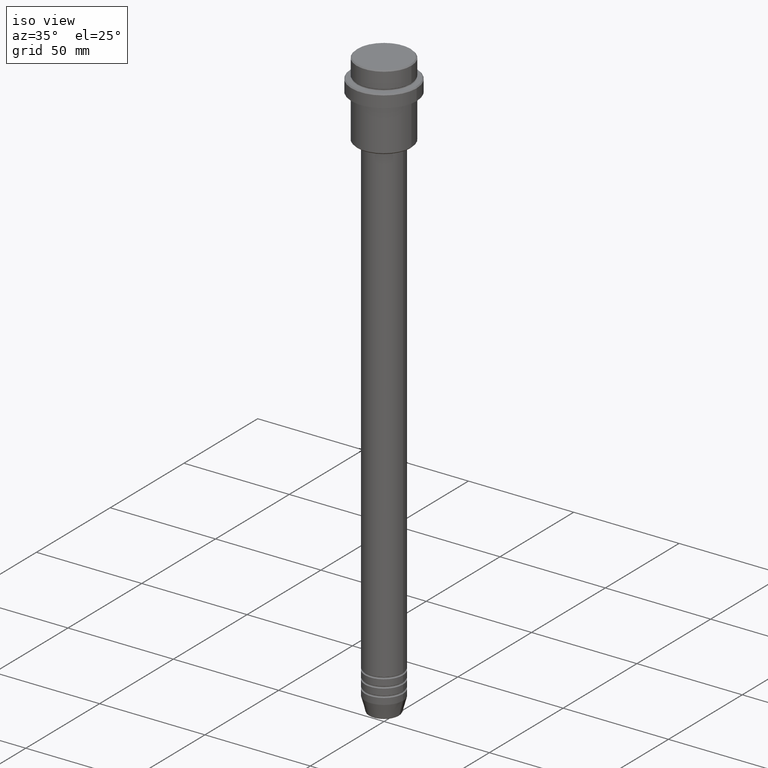
[diagram: clean part render]
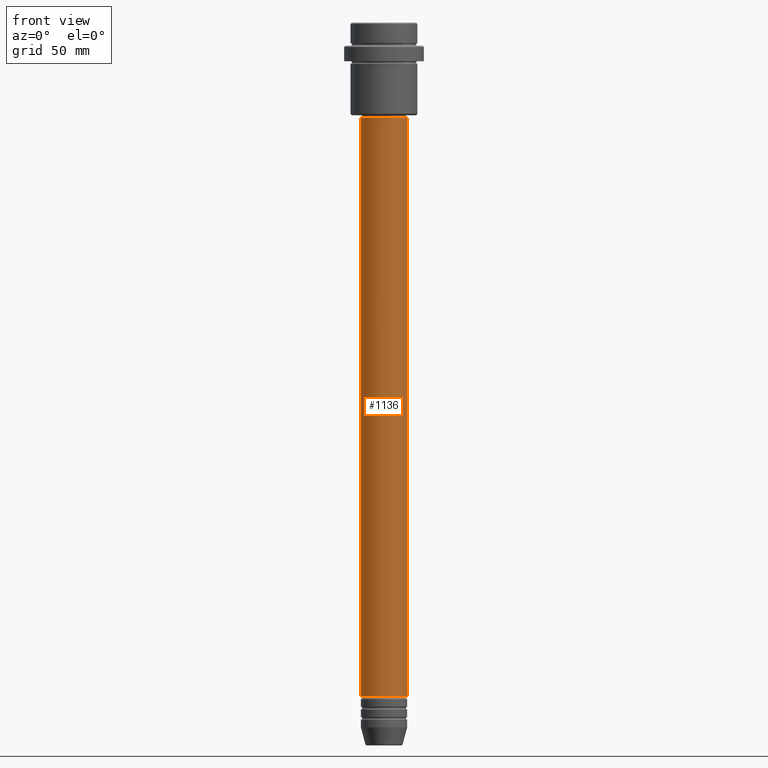
[diagram: tour spotlight — one face highlighted and labeled with its STEP entity id]
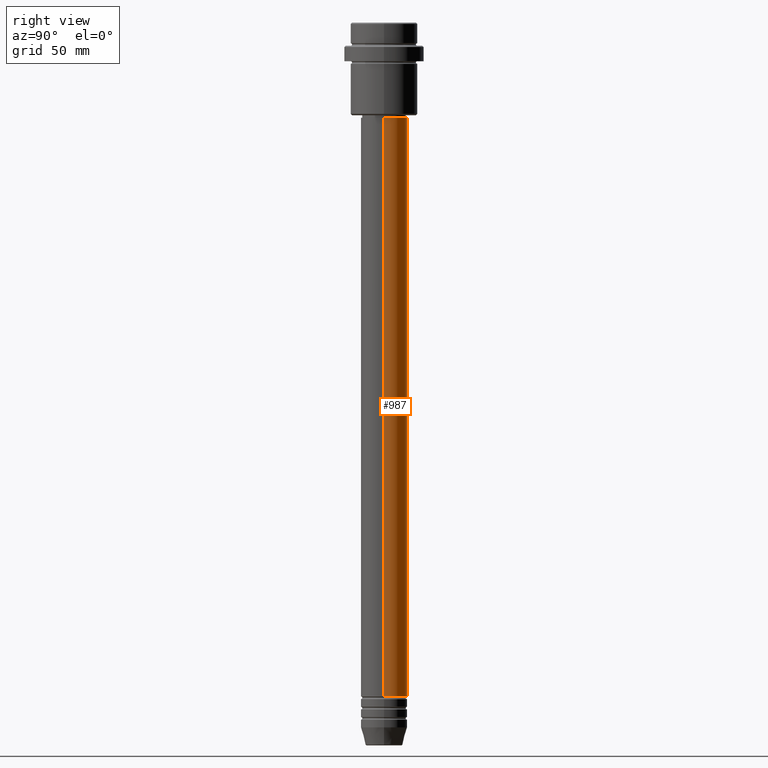
[diagram: tour spotlight — one face highlighted and labeled with its STEP entity id]
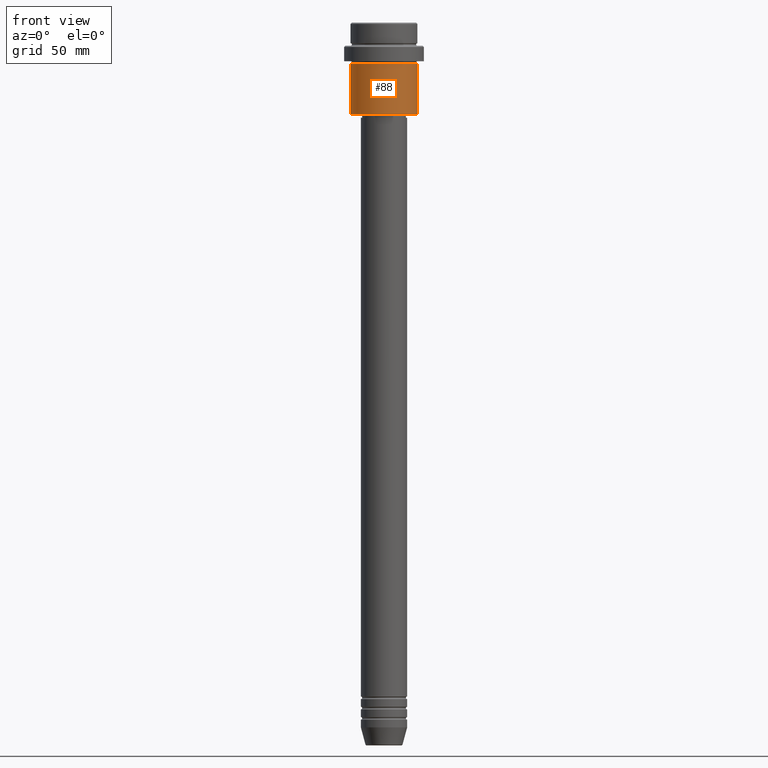
[diagram: tour spotlight — one face highlighted and labeled with its STEP entity id]
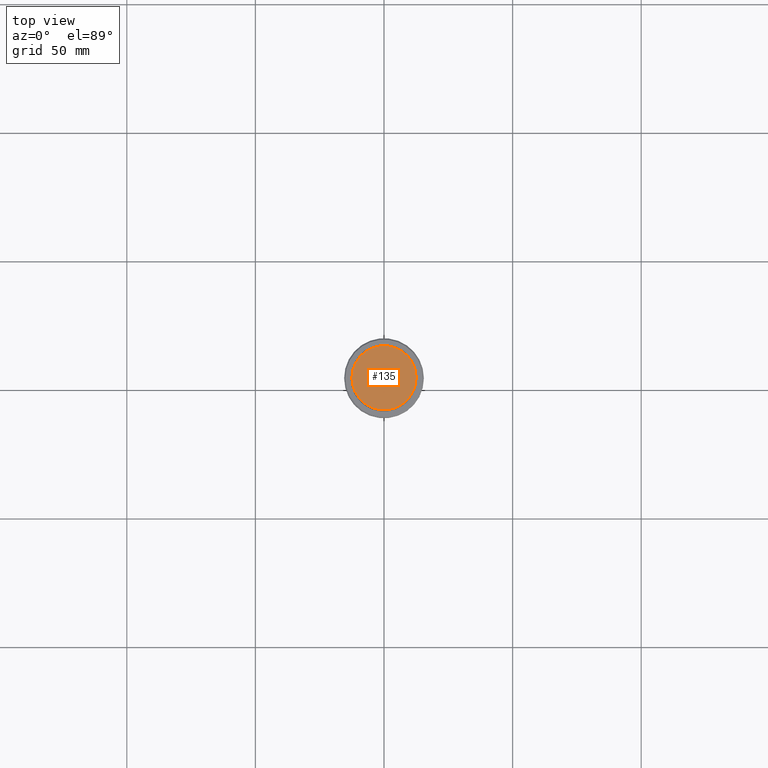
[diagram: tour spotlight — one face highlighted and labeled with its STEP entity id]
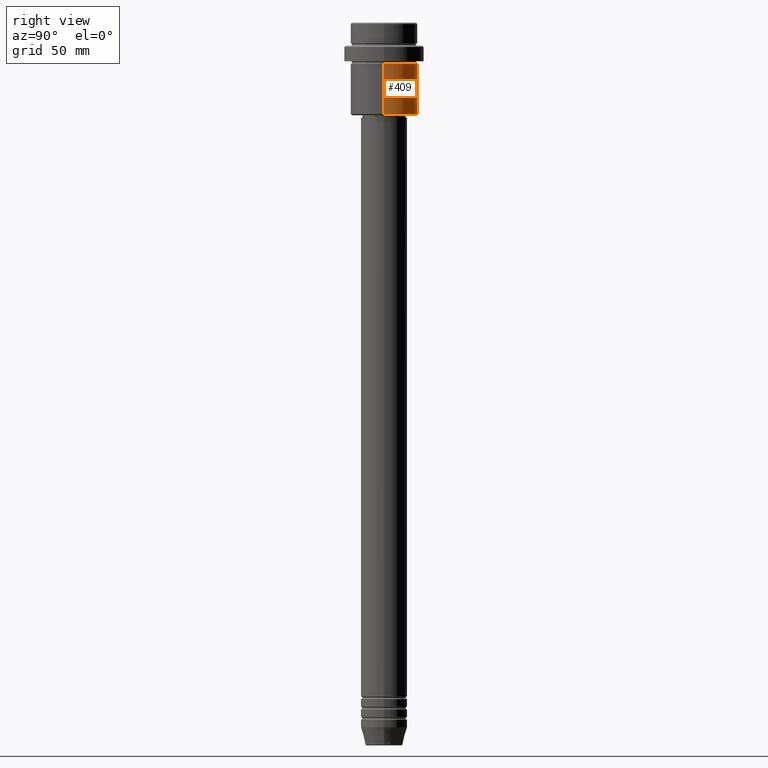
[diagram: tour spotlight — one face highlighted and labeled with its STEP entity id]
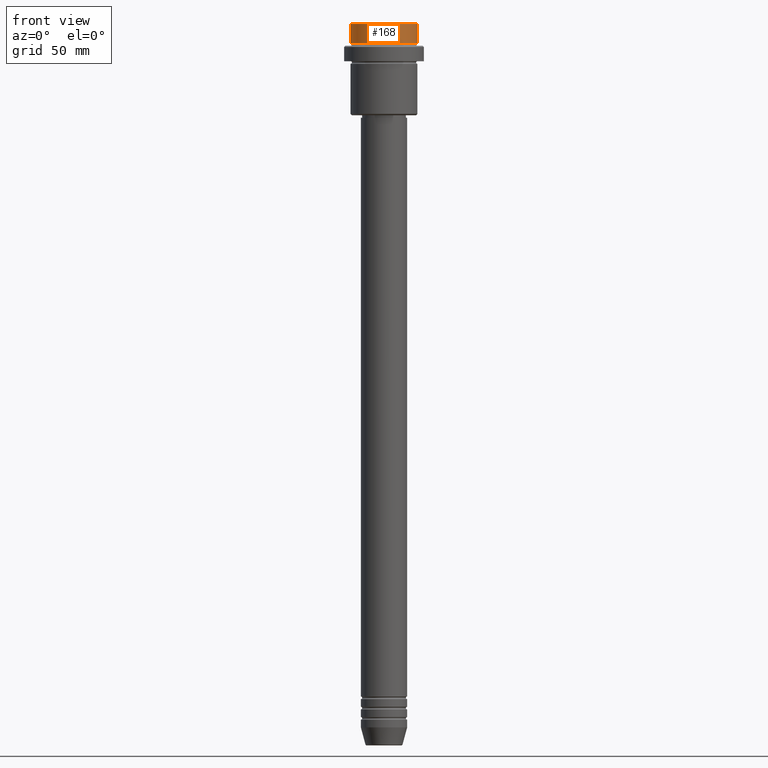
[diagram: tour spotlight — one face highlighted and labeled with its STEP entity id]
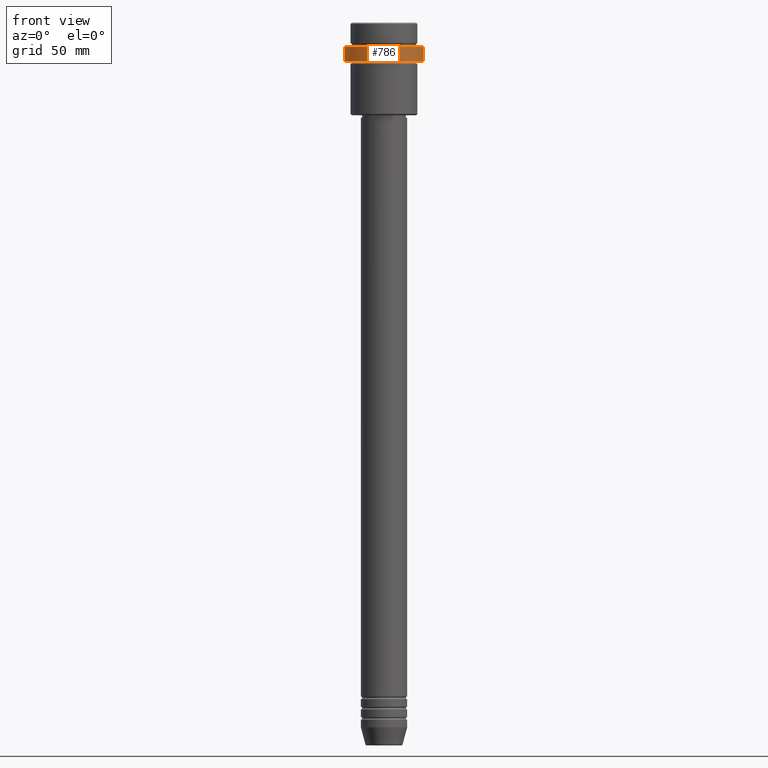
[diagram: tour spotlight — one face highlighted and labeled with its STEP entity id]
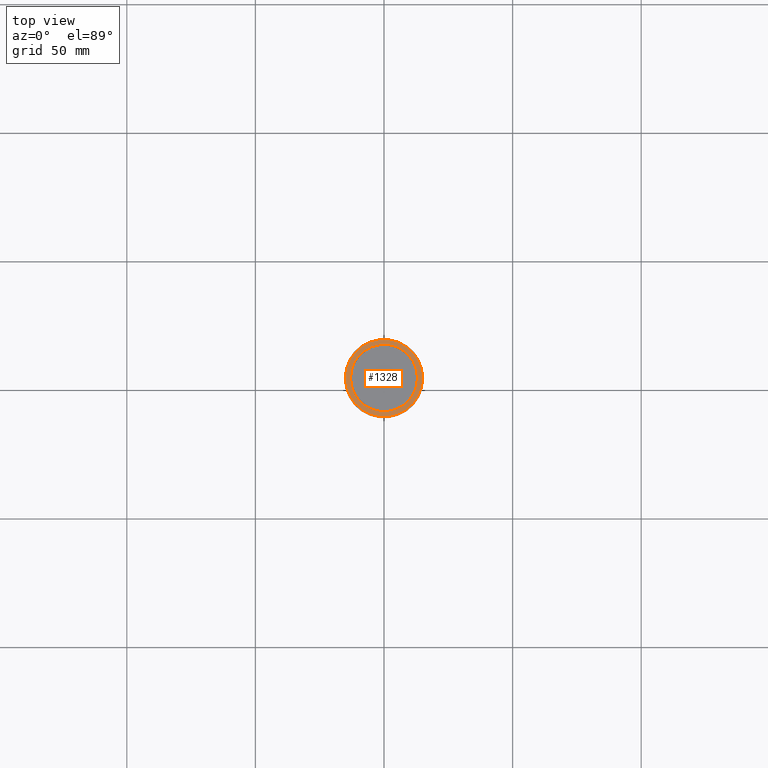
[diagram: tour spotlight — one face highlighted and labeled with its STEP entity id]
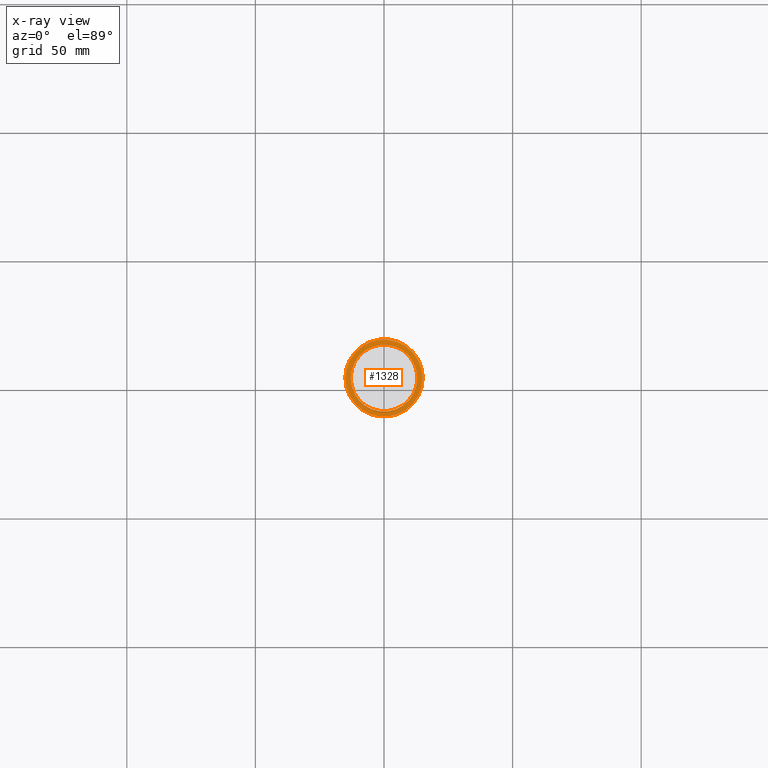
[diagram: x-ray of the same camera — body ghosted, this tour face saturated]
A machine part: a face-by-face anatomy tour. The part has 52 B-rep faces; the first image is the clean iso view, then the 8 largest visible faces are spotlighted one at a time (largest first), each with its STEP entity span.

Face 1 — front view, entity #1136. In plain terms, the highlighted cylindrical surface (edge-blend (fillet) strip) has radius 9 mm, axis along (-0, -0, 1).
Definition (entity closure, byte-faithful):
#21 = CIRCLE ( 'NONE', #1245, 9.000000000000000000 ) ;
#37 = ORIENTED_EDGE ( 'NONE', *, *, #1022, .T. ) ;
#58 = DIRECTION ( 'NONE',  ( 1.000000000000000000, 0.000000000000000000, 0.000000000000000000 ) ) ;
#120 = CARTESIAN_POINT ( 'NONE',  ( 9.000000000000001776, 0.000000000000000000, 0.000000000000000000 ) ) ;
#169 = CARTESIAN_POINT ( 'NONE',  ( 0.000000000000000000, 0.000000000000000000, -261.9999999999998863 ) ) ;
#207 = EDGE_LOOP ( 'NONE', ( #962, #37, #901, #727 ) ) ;
#334 = EDGE_CURVE ( 'NONE', #1095, #1261, #1160, .T. ) ;
#453 = CYLINDRICAL_SURFACE ( 'NONE', #699, 9.000000000000001776 ) ;
#474 = VECTOR ( 'NONE', #739, 1000.000000000000000 ) ;
#511 = CARTESIAN_POINT ( 'NONE',  ( 0.000000000000000000, 0.000000000000000000, -37.00000000000008527 ) ) ;
#525 = LINE ( 'NONE', #120, #474 ) ;
#529 = DIRECTION ( 'NONE',  ( -0.000000000000000000, -0.000000000000000000, 1.000000000000000000 ) ) ;
#538 = CIRCLE ( 'NONE', #1355, 9.000000000000001776 ) ;
#594 = DIRECTION ( 'NONE',  ( -0.000000000000000000, -0.000000000000000000, 1.000000000000000000 ) ) ;
#597 = CARTESIAN_POINT ( 'NONE',  ( 9.000000000000001776, 0.000000000000000000, -37.00000000000008527 ) ) ;
#699 = AXIS2_PLACEMENT_3D ( 'NONE', #861, #1106, #849 ) ;
#727 = ORIENTED_EDGE ( 'NONE', *, *, #817, .F. ) ;
#739 = DIRECTION ( 'NONE',  ( -0.000000000000000000, -0.000000000000000000, 1.000000000000000000 ) ) ;
#817 = EDGE_CURVE ( 'NONE', #1261, #938, #538, .T. ) ;
#849 = DIRECTION ( 'NONE',  ( 1.000000000000000000, 0.000000000000000000, 0.000000000000000000 ) ) ;
#861 = CARTESIAN_POINT ( 'NONE',  ( 0.000000000000000000, 0.000000000000000000, 0.000000000000000000 ) ) ;
#901 = ORIENTED_EDGE ( 'NONE', *, *, #1165, .T. ) ;
#912 = VECTOR ( 'NONE', #594, 1000.000000000000000 ) ;
#938 = VERTEX_POINT ( 'NONE', #597 ) ;
#950 = VERTEX_POINT ( 'NONE', #1028 ) ;
#962 = ORIENTED_EDGE ( 'NONE', *, *, #334, .F. ) ;
#1022 = EDGE_CURVE ( 'NONE', #1095, #950, #21, .T. ) ;
#1028 = CARTESIAN_POINT ( 'NONE',  ( 9.000000000000000000, 0.000000000000000000, -261.9999999999998863 ) ) ;
#1044 = DIRECTION ( 'NONE',  ( -0.000000000000000000, -0.000000000000000000, 1.000000000000000000 ) ) ;
#1080 = DIRECTION ( 'NONE',  ( 1.000000000000000000, 0.000000000000000000, 0.000000000000000000 ) ) ;
#1095 = VERTEX_POINT ( 'NONE', #1340 ) ;
#1106 = DIRECTION ( 'NONE',  ( -0.000000000000000000, -0.000000000000000000, 1.000000000000000000 ) ) ;
#1115 = FACE_OUTER_BOUND ( 'NONE', #207, .T. ) ;
#1136 = ADVANCED_FACE ( 'NONE', ( #1115 ), #453, .T. ) ;
#1160 = LINE ( 'NONE', #1263, #912 ) ;
#1165 = EDGE_CURVE ( 'NONE', #950, #938, #525, .T. ) ;
#1211 = CARTESIAN_POINT ( 'NONE',  ( -9.000000000000001776, 1.102182119232617911E-15, -37.00000000000008527 ) ) ;
#1245 = AXIS2_PLACEMENT_3D ( 'NONE', #169, #1044, #58 ) ;
#1261 = VERTEX_POINT ( 'NONE', #1211 ) ;
#1263 = CARTESIAN_POINT ( 'NONE',  ( -9.000000000000001776, 1.102182119232617911E-15, 0.000000000000000000 ) ) ;
#1340 = CARTESIAN_POINT ( 'NONE',  ( -9.000000000000000000, 1.102182119232617714E-15, -261.9999999999998863 ) ) ;
#1355 = AXIS2_PLACEMENT_3D ( 'NONE', #511, #529, #1080 ) ;

Face 2 — right view, entity #987. In plain terms, the highlighted cylindrical surface (edge-blend (fillet) strip) has radius 9 mm, axis along (-0, -0, 1).
Definition (entity closure, byte-faithful):
#13 = DIRECTION ( 'NONE',  ( -0.000000000000000000, -0.000000000000000000, 1.000000000000000000 ) ) ;
#120 = CARTESIAN_POINT ( 'NONE',  ( 9.000000000000001776, 0.000000000000000000, 0.000000000000000000 ) ) ;
#129 = CIRCLE ( 'NONE', #915, 9.000000000000001776 ) ;
#294 = ORIENTED_EDGE ( 'NONE', *, *, #1165, .F. ) ;
#297 = FACE_OUTER_BOUND ( 'NONE', #1159, .T. ) ;
#334 = EDGE_CURVE ( 'NONE', #1095, #1261, #1160, .T. ) ;
#335 = CARTESIAN_POINT ( 'NONE',  ( 0.000000000000000000, 0.000000000000000000, -37.00000000000008527 ) ) ;
#342 = DIRECTION ( 'NONE',  ( 1.000000000000000000, 0.000000000000000000, 0.000000000000000000 ) ) ;
#445 = EDGE_CURVE ( 'NONE', #950, #1095, #561, .T. ) ;
#474 = VECTOR ( 'NONE', #739, 1000.000000000000000 ) ;
#486 = DIRECTION ( 'NONE',  ( -0.000000000000000000, -0.000000000000000000, 1.000000000000000000 ) ) ;
#525 = LINE ( 'NONE', #120, #474 ) ;
#561 = CIRCLE ( 'NONE', #941, 9.000000000000000000 ) ;
#594 = DIRECTION ( 'NONE',  ( -0.000000000000000000, -0.000000000000000000, 1.000000000000000000 ) ) ;
#597 = CARTESIAN_POINT ( 'NONE',  ( 9.000000000000001776, 0.000000000000000000, -37.00000000000008527 ) ) ;
#603 = CYLINDRICAL_SURFACE ( 'NONE', #1243, 9.000000000000001776 ) ;
#650 = DIRECTION ( 'NONE',  ( 1.000000000000000000, 0.000000000000000000, 0.000000000000000000 ) ) ;
#739 = DIRECTION ( 'NONE',  ( -0.000000000000000000, -0.000000000000000000, 1.000000000000000000 ) ) ;
#748 = CARTESIAN_POINT ( 'NONE',  ( 0.000000000000000000, 0.000000000000000000, -261.9999999999998863 ) ) ;
#759 = DIRECTION ( 'NONE',  ( -0.000000000000000000, -0.000000000000000000, 1.000000000000000000 ) ) ;
#798 = EDGE_CURVE ( 'NONE', #938, #1261, #129, .T. ) ;
#912 = VECTOR ( 'NONE', #594, 1000.000000000000000 ) ;
#915 = AXIS2_PLACEMENT_3D ( 'NONE', #335, #759, #650 ) ;
#938 = VERTEX_POINT ( 'NONE', #597 ) ;
#941 = AXIS2_PLACEMENT_3D ( 'NONE', #748, #13, #342 ) ;
#950 = VERTEX_POINT ( 'NONE', #1028 ) ;
#980 = ORIENTED_EDGE ( 'NONE', *, *, #334, .T. ) ;
#987 = ADVANCED_FACE ( 'NONE', ( #297 ), #603, .T. ) ;
#1028 = CARTESIAN_POINT ( 'NONE',  ( 9.000000000000000000, 0.000000000000000000, -261.9999999999998863 ) ) ;
#1049 = ORIENTED_EDGE ( 'NONE', *, *, #798, .F. ) ;
#1095 = VERTEX_POINT ( 'NONE', #1340 ) ;
#1159 = EDGE_LOOP ( 'NONE', ( #1354, #980, #1049, #294 ) ) ;
#1160 = LINE ( 'NONE', #1263, #912 ) ;
#1162 = CARTESIAN_POINT ( 'NONE',  ( 0.000000000000000000, 0.000000000000000000, 0.000000000000000000 ) ) ;
#1165 = EDGE_CURVE ( 'NONE', #950, #938, #525, .T. ) ;
#1211 = CARTESIAN_POINT ( 'NONE',  ( -9.000000000000001776, 1.102182119232617911E-15, -37.00000000000008527 ) ) ;
#1243 = AXIS2_PLACEMENT_3D ( 'NONE', #1162, #486, #1364 ) ;
#1261 = VERTEX_POINT ( 'NONE', #1211 ) ;
#1263 = CARTESIAN_POINT ( 'NONE',  ( -9.000000000000001776, 1.102182119232617911E-15, 0.000000000000000000 ) ) ;
#1340 = CARTESIAN_POINT ( 'NONE',  ( -9.000000000000000000, 1.102182119232617714E-15, -261.9999999999998863 ) ) ;
#1354 = ORIENTED_EDGE ( 'NONE', *, *, #445, .T. ) ;
#1364 = DIRECTION ( 'NONE',  ( 1.000000000000000000, 0.000000000000000000, 0.000000000000000000 ) ) ;

Face 3 — front view, entity #88. In plain terms, the highlighted cylindrical surface (edge-blend (fillet) strip) has radius 13 mm, axis along (-0, -0, 1).
Definition (entity closure, byte-faithful):
#53 = CARTESIAN_POINT ( 'NONE',  ( -13.00000000000000000, 1.592040838891559095E-15, 0.000000000000000000 ) ) ;
#88 = ADVANCED_FACE ( 'NONE', ( #1196 ), #772, .T. ) ;
#108 = CIRCLE ( 'NONE', #341, 13.00000000000000000 ) ;
#113 = VERTEX_POINT ( 'NONE', #1104 ) ;
#161 = VECTOR ( 'NONE', #814, 1000.000000000000000 ) ;
#172 = CARTESIAN_POINT ( 'NONE',  ( 0.000000000000000000, 0.000000000000000000, -35.50000000000004263 ) ) ;
#228 = DIRECTION ( 'NONE',  ( -0.000000000000000000, -0.000000000000000000, 1.000000000000000000 ) ) ;
#242 = DIRECTION ( 'NONE',  ( -0.000000000000000000, -0.000000000000000000, 1.000000000000000000 ) ) ;
#252 = EDGE_CURVE ( 'NONE', #1345, #1166, #1289, .T. ) ;
#285 = CARTESIAN_POINT ( 'NONE',  ( 0.000000000000000000, 0.000000000000000000, -16.00000000000000000 ) ) ;
#341 = AXIS2_PLACEMENT_3D ( 'NONE', #172, #1250, #1134 ) ;
#395 = CIRCLE ( 'NONE', #622, 13.00000000000000000 ) ;
#442 = LINE ( 'NONE', #869, #977 ) ;
#456 = CARTESIAN_POINT ( 'NONE',  ( 0.000000000000000000, 0.000000000000000000, 0.000000000000000000 ) ) ;
#500 = AXIS2_PLACEMENT_3D ( 'NONE', #456, #242, #991 ) ;
#567 = EDGE_CURVE ( 'NONE', #1166, #766, #395, .T. ) ;
#575 = ORIENTED_EDGE ( 'NONE', *, *, #567, .F. ) ;
#583 = DIRECTION ( 'NONE',  ( 1.000000000000000000, 0.000000000000000000, 0.000000000000000000 ) ) ;
#622 = AXIS2_PLACEMENT_3D ( 'NONE', #285, #1040, #583 ) ;
#634 = EDGE_CURVE ( 'NONE', #1345, #113, #108, .T. ) ;
#735 = CARTESIAN_POINT ( 'NONE',  ( 13.00000000000000000, 0.000000000000000000, -16.00000000000000000 ) ) ;
#766 = VERTEX_POINT ( 'NONE', #735 ) ;
#772 = CYLINDRICAL_SURFACE ( 'NONE', #500, 13.00000000000000000 ) ;
#783 = EDGE_CURVE ( 'NONE', #113, #766, #442, .T. ) ;
#812 = ORIENTED_EDGE ( 'NONE', *, *, #252, .F. ) ;
#814 = DIRECTION ( 'NONE',  ( -0.000000000000000000, -0.000000000000000000, 1.000000000000000000 ) ) ;
#850 = ORIENTED_EDGE ( 'NONE', *, *, #783, .T. ) ;
#869 = CARTESIAN_POINT ( 'NONE',  ( 13.00000000000000000, 0.000000000000000000, 0.000000000000000000 ) ) ;
#885 = CARTESIAN_POINT ( 'NONE',  ( -13.00000000000000000, 1.592040838891559095E-15, -16.00000000000000000 ) ) ;
#977 = VECTOR ( 'NONE', #228, 1000.000000000000000 ) ;
#988 = ORIENTED_EDGE ( 'NONE', *, *, #634, .T. ) ;
#991 = DIRECTION ( 'NONE',  ( 1.000000000000000000, 0.000000000000000000, 0.000000000000000000 ) ) ;
#1040 = DIRECTION ( 'NONE',  ( -0.000000000000000000, -0.000000000000000000, 1.000000000000000000 ) ) ;
#1104 = CARTESIAN_POINT ( 'NONE',  ( 13.00000000000000000, 0.000000000000000000, -35.50000000000004263 ) ) ;
#1134 = DIRECTION ( 'NONE',  ( -1.000000000000000000, 0.000000000000000000, 0.000000000000000000 ) ) ;
#1166 = VERTEX_POINT ( 'NONE', #885 ) ;
#1196 = FACE_OUTER_BOUND ( 'NONE', #1342, .T. ) ;
#1250 = DIRECTION ( 'NONE',  ( -0.000000000000000000, -0.000000000000000000, 1.000000000000000000 ) ) ;
#1289 = LINE ( 'NONE', #53, #161 ) ;
#1342 = EDGE_LOOP ( 'NONE', ( #812, #988, #850, #575 ) ) ;
#1345 = VERTEX_POINT ( 'NONE', #1415 ) ;
#1415 = CARTESIAN_POINT ( 'NONE',  ( -13.00000000000000000, 1.592040838891559095E-15, -35.50000000000004263 ) ) ;

Face 4 — top view, entity #135. In plain terms, the highlighted planar face has unit normal (0, -0, 1).
Definition (entity closure, byte-faithful):
#82 = DIRECTION ( 'NONE',  ( 0.000000000000000000, -0.000000000000000000, 1.000000000000000000 ) ) ;
#94 = VERTEX_POINT ( 'NONE', #1110 ) ;
#135 = ADVANCED_FACE ( 'NONE', ( #623 ), #298, .T. ) ;
#232 = ORIENTED_EDGE ( 'NONE', *, *, #387, .T. ) ;
#280 = AXIS2_PLACEMENT_3D ( 'NONE', #452, #1317, #1301 ) ;
#298 = PLANE ( 'NONE',  #802 ) ;
#387 = EDGE_CURVE ( 'NONE', #1281, #94, #533, .T. ) ;
#452 = CARTESIAN_POINT ( 'NONE',  ( 0.000000000000000000, 0.000000000000000000, 0.000000000000000000 ) ) ;
#533 = CIRCLE ( 'NONE', #280, 12.50000000000001243 ) ;
#623 = FACE_OUTER_BOUND ( 'NONE', #830, .T. ) ;
#656 = CIRCLE ( 'NONE', #1094, 12.50000000000001243 ) ;
#802 = AXIS2_PLACEMENT_3D ( 'NONE', #932, #82, #1073 ) ;
#806 = EDGE_CURVE ( 'NONE', #94, #1281, #656, .T. ) ;
#830 = EDGE_LOOP ( 'NONE', ( #1265, #232 ) ) ;
#840 = CARTESIAN_POINT ( 'NONE',  ( 0.000000000000000000, 0.000000000000000000, 0.000000000000000000 ) ) ;
#889 = CARTESIAN_POINT ( 'NONE',  ( 12.50000000000001243, 1.561424668912876097E-15, 0.000000000000000000 ) ) ;
#932 = CARTESIAN_POINT ( 'NONE',  ( 0.000000000000000000, 0.000000000000000000, 0.000000000000000000 ) ) ;
#1073 = DIRECTION ( 'NONE',  ( 1.000000000000000000, 0.000000000000000000, 0.000000000000000000 ) ) ;
#1094 = AXIS2_PLACEMENT_3D ( 'NONE', #840, #1294, #1204 ) ;
#1110 = CARTESIAN_POINT ( 'NONE',  ( -12.50000000000001243, 0.000000000000000000, 0.000000000000000000 ) ) ;
#1204 = DIRECTION ( 'NONE',  ( 1.000000000000000000, 0.000000000000000000, 0.000000000000000000 ) ) ;
#1265 = ORIENTED_EDGE ( 'NONE', *, *, #806, .T. ) ;
#1281 = VERTEX_POINT ( 'NONE', #889 ) ;
#1294 = DIRECTION ( 'NONE',  ( -0.000000000000000000, -0.000000000000000000, 1.000000000000000000 ) ) ;
#1301 = DIRECTION ( 'NONE',  ( 1.000000000000000000, 0.000000000000000000, 0.000000000000000000 ) ) ;
#1317 = DIRECTION ( 'NONE',  ( -0.000000000000000000, -0.000000000000000000, 1.000000000000000000 ) ) ;

Face 5 — right view, entity #409. In plain terms, the highlighted cylindrical surface (edge-blend (fillet) strip) has radius 13 mm, axis along (-0, -0, 1).
Definition (entity closure, byte-faithful):
#12 = ORIENTED_EDGE ( 'NONE', *, *, #783, .F. ) ;
#53 = CARTESIAN_POINT ( 'NONE',  ( -13.00000000000000000, 1.592040838891559095E-15, 0.000000000000000000 ) ) ;
#113 = VERTEX_POINT ( 'NONE', #1104 ) ;
#121 = DIRECTION ( 'NONE',  ( -0.000000000000000000, -0.000000000000000000, 1.000000000000000000 ) ) ;
#161 = VECTOR ( 'NONE', #814, 1000.000000000000000 ) ;
#190 = AXIS2_PLACEMENT_3D ( 'NONE', #768, #662, #636 ) ;
#200 = EDGE_LOOP ( 'NONE', ( #1074, #251, #1215, #12 ) ) ;
#228 = DIRECTION ( 'NONE',  ( -0.000000000000000000, -0.000000000000000000, 1.000000000000000000 ) ) ;
#251 = ORIENTED_EDGE ( 'NONE', *, *, #252, .T. ) ;
#252 = EDGE_CURVE ( 'NONE', #1345, #1166, #1289, .T. ) ;
#385 = CARTESIAN_POINT ( 'NONE',  ( 0.000000000000000000, 0.000000000000000000, -16.00000000000000000 ) ) ;
#398 = DIRECTION ( 'NONE',  ( -0.000000000000000000, -0.000000000000000000, 1.000000000000000000 ) ) ;
#409 = ADVANCED_FACE ( 'NONE', ( #546 ), #430, .T. ) ;
#430 = CYLINDRICAL_SURFACE ( 'NONE', #190, 13.00000000000000000 ) ;
#442 = LINE ( 'NONE', #869, #977 ) ;
#460 = DIRECTION ( 'NONE',  ( -1.000000000000000000, 0.000000000000000000, 0.000000000000000000 ) ) ;
#546 = FACE_OUTER_BOUND ( 'NONE', #200, .T. ) ;
#574 = EDGE_CURVE ( 'NONE', #766, #1166, #1378, .T. ) ;
#636 = DIRECTION ( 'NONE',  ( 1.000000000000000000, 0.000000000000000000, 0.000000000000000000 ) ) ;
#648 = CIRCLE ( 'NONE', #1120, 13.00000000000000000 ) ;
#662 = DIRECTION ( 'NONE',  ( -0.000000000000000000, -0.000000000000000000, 1.000000000000000000 ) ) ;
#735 = CARTESIAN_POINT ( 'NONE',  ( 13.00000000000000000, 0.000000000000000000, -16.00000000000000000 ) ) ;
#752 = CARTESIAN_POINT ( 'NONE',  ( 0.000000000000000000, 0.000000000000000000, -35.50000000000004263 ) ) ;
#766 = VERTEX_POINT ( 'NONE', #735 ) ;
#768 = CARTESIAN_POINT ( 'NONE',  ( 0.000000000000000000, 0.000000000000000000, 0.000000000000000000 ) ) ;
#783 = EDGE_CURVE ( 'NONE', #113, #766, #442, .T. ) ;
#814 = DIRECTION ( 'NONE',  ( -0.000000000000000000, -0.000000000000000000, 1.000000000000000000 ) ) ;
#869 = CARTESIAN_POINT ( 'NONE',  ( 13.00000000000000000, 0.000000000000000000, 0.000000000000000000 ) ) ;
#885 = CARTESIAN_POINT ( 'NONE',  ( -13.00000000000000000, 1.592040838891559095E-15, -16.00000000000000000 ) ) ;
#913 = DIRECTION ( 'NONE',  ( 1.000000000000000000, 0.000000000000000000, 0.000000000000000000 ) ) ;
#977 = VECTOR ( 'NONE', #228, 1000.000000000000000 ) ;
#1074 = ORIENTED_EDGE ( 'NONE', *, *, #1359, .T. ) ;
#1104 = CARTESIAN_POINT ( 'NONE',  ( 13.00000000000000000, 0.000000000000000000, -35.50000000000004263 ) ) ;
#1120 = AXIS2_PLACEMENT_3D ( 'NONE', #752, #121, #460 ) ;
#1166 = VERTEX_POINT ( 'NONE', #885 ) ;
#1215 = ORIENTED_EDGE ( 'NONE', *, *, #574, .F. ) ;
#1289 = LINE ( 'NONE', #53, #161 ) ;
#1337 = AXIS2_PLACEMENT_3D ( 'NONE', #385, #398, #913 ) ;
#1345 = VERTEX_POINT ( 'NONE', #1415 ) ;
#1359 = EDGE_CURVE ( 'NONE', #113, #1345, #648, .T. ) ;
#1378 = CIRCLE ( 'NONE', #1337, 13.00000000000000000 ) ;
#1415 = CARTESIAN_POINT ( 'NONE',  ( -13.00000000000000000, 1.592040838891559095E-15, -35.50000000000004263 ) ) ;

Face 6 — front view, entity #168. In plain terms, the highlighted cylindrical surface (edge-blend (fillet) strip) has radius 13 mm, axis along (-0, -0, 1).
Definition (entity closure, byte-faithful):
#18 = CARTESIAN_POINT ( 'NONE',  ( 0.000000000000000000, 0.000000000000000000, -0.5000000000000038858 ) ) ;
#137 = DIRECTION ( 'NONE',  ( 1.000000000000000000, 0.000000000000000000, 0.000000000000000000 ) ) ;
#168 = ADVANCED_FACE ( 'NONE', ( #306 ), #604, .T. ) ;
#178 = DIRECTION ( 'NONE',  ( -0.000000000000000000, -0.000000000000000000, 1.000000000000000000 ) ) ;
#181 = ORIENTED_EDGE ( 'NONE', *, *, #243, .T. ) ;
#218 = DIRECTION ( 'NONE',  ( 1.000000000000000000, 0.000000000000000000, 0.000000000000000000 ) ) ;
#236 = CARTESIAN_POINT ( 'NONE',  ( -12.99999999999999822, 1.592040838891558898E-15, -0.5000000000000038858 ) ) ;
#243 = EDGE_CURVE ( 'NONE', #437, #710, #1295, .T. ) ;
#246 = CARTESIAN_POINT ( 'NONE',  ( 0.000000000000000000, 0.000000000000000000, -7.999999999999998224 ) ) ;
#300 = ORIENTED_EDGE ( 'NONE', *, *, #356, .F. ) ;
#306 = FACE_OUTER_BOUND ( 'NONE', #828, .T. ) ;
#319 = CARTESIAN_POINT ( 'NONE',  ( 12.99999999999999822, 0.000000000000000000, 0.000000000000000000 ) ) ;
#356 = EDGE_CURVE ( 'NONE', #410, #1309, #951, .T. ) ;
#359 = VECTOR ( 'NONE', #178, 1000.000000000000000 ) ;
#400 = DIRECTION ( 'NONE',  ( -0.000000000000000000, -0.000000000000000000, 1.000000000000000000 ) ) ;
#403 = DIRECTION ( 'NONE',  ( -0.000000000000000000, -0.000000000000000000, 1.000000000000000000 ) ) ;
#410 = VERTEX_POINT ( 'NONE', #645 ) ;
#422 = DIRECTION ( 'NONE',  ( 1.000000000000000000, 0.000000000000000000, 0.000000000000000000 ) ) ;
#437 = VERTEX_POINT ( 'NONE', #993 ) ;
#522 = CARTESIAN_POINT ( 'NONE',  ( 12.99999999999999822, 0.000000000000000000, -0.5000000000000038858 ) ) ;
#604 = CYLINDRICAL_SURFACE ( 'NONE', #879, 12.99999999999999822 ) ;
#612 = CARTESIAN_POINT ( 'NONE',  ( 0.000000000000000000, 0.000000000000000000, 0.000000000000000000 ) ) ;
#645 = CARTESIAN_POINT ( 'NONE',  ( -12.99999999999999822, 1.592040838891558898E-15, -7.999999999999998224 ) ) ;
#675 = DIRECTION ( 'NONE',  ( -0.000000000000000000, -0.000000000000000000, 1.000000000000000000 ) ) ;
#710 = VERTEX_POINT ( 'NONE', #522 ) ;
#828 = EDGE_LOOP ( 'NONE', ( #300, #1303, #181, #1031 ) ) ;
#879 = AXIS2_PLACEMENT_3D ( 'NONE', #612, #403, #422 ) ;
#951 = LINE ( 'NONE', #1380, #1259 ) ;
#993 = CARTESIAN_POINT ( 'NONE',  ( 12.99999999999999822, 0.000000000000000000, -7.999999999999998224 ) ) ;
#1002 = AXIS2_PLACEMENT_3D ( 'NONE', #246, #675, #137 ) ;
#1031 = ORIENTED_EDGE ( 'NONE', *, *, #1397, .T. ) ;
#1122 = EDGE_CURVE ( 'NONE', #410, #437, #1324, .T. ) ;
#1259 = VECTOR ( 'NONE', #400, 1000.000000000000000 ) ;
#1295 = LINE ( 'NONE', #319, #359 ) ;
#1303 = ORIENTED_EDGE ( 'NONE', *, *, #1122, .T. ) ;
#1309 = VERTEX_POINT ( 'NONE', #236 ) ;
#1324 = CIRCLE ( 'NONE', #1002, 12.99999999999999822 ) ;
#1333 = DIRECTION ( 'NONE',  ( 0.000000000000000000, 0.000000000000000000, -1.000000000000000000 ) ) ;
#1348 = AXIS2_PLACEMENT_3D ( 'NONE', #18, #1333, #218 ) ;
#1369 = CIRCLE ( 'NONE', #1348, 12.99999999999999822 ) ;
#1380 = CARTESIAN_POINT ( 'NONE',  ( -12.99999999999999822, 1.592040838891558898E-15, 0.000000000000000000 ) ) ;
#1397 = EDGE_CURVE ( 'NONE', #710, #1309, #1369, .T. ) ;

Face 7 — front view, entity #786. In plain terms, the highlighted cylindrical surface (partial cylindrical patch) has radius 15.5 mm, axis along (-0, -0, 1).
Definition (entity closure, byte-faithful):
#4 = CARTESIAN_POINT ( 'NONE',  ( 0.000000000000000000, 0.000000000000000000, 0.000000000000000000 ) ) ;
#84 = LINE ( 'NONE', #633, #854 ) ;
#102 = AXIS2_PLACEMENT_3D ( 'NONE', #128, #864, #1313 ) ;
#114 = DIRECTION ( 'NONE',  ( -0.000000000000000000, -0.000000000000000000, 1.000000000000000000 ) ) ;
#128 = CARTESIAN_POINT ( 'NONE',  ( 0.000000000000000000, 0.000000000000000000, -9.500000000000012434 ) ) ;
#229 = DIRECTION ( 'NONE',  ( 1.000000000000000000, 0.000000000000000000, 0.000000000000000000 ) ) ;
#264 = AXIS2_PLACEMENT_3D ( 'NONE', #4, #974, #1390 ) ;
#364 = VERTEX_POINT ( 'NONE', #1171 ) ;
#390 = CIRCLE ( 'NONE', #1239, 15.50000000000000000 ) ;
#406 = ORIENTED_EDGE ( 'NONE', *, *, #1343, .T. ) ;
#421 = FACE_OUTER_BOUND ( 'NONE', #943, .T. ) ;
#469 = EDGE_CURVE ( 'NONE', #1041, #1001, #1326, .T. ) ;
#508 = VERTEX_POINT ( 'NONE', #1126 ) ;
#514 = DIRECTION ( 'NONE',  ( -0.000000000000000000, -0.000000000000000000, 1.000000000000000000 ) ) ;
#568 = CARTESIAN_POINT ( 'NONE',  ( -15.50000000000000000, 1.898202538678397557E-15, -15.00000000000000000 ) ) ;
#579 = VECTOR ( 'NONE', #114, 1000.000000000000000 ) ;
#633 = CARTESIAN_POINT ( 'NONE',  ( 15.50000000000000000, 0.000000000000000000, 0.000000000000000000 ) ) ;
#651 = DIRECTION ( 'NONE',  ( -0.000000000000000000, -0.000000000000000000, 1.000000000000000000 ) ) ;
#678 = EDGE_CURVE ( 'NONE', #364, #508, #84, .T. ) ;
#700 = ORIENTED_EDGE ( 'NONE', *, *, #1379, .T. ) ;
#786 = ADVANCED_FACE ( 'NONE', ( #421 ), #1312, .T. ) ;
#854 = VECTOR ( 'NONE', #514, 1000.000000000000000 ) ;
#864 = DIRECTION ( 'NONE',  ( 0.000000000000000000, 0.000000000000000000, -1.000000000000000000 ) ) ;
#876 = CIRCLE ( 'NONE', #102, 15.50000000000000000 ) ;
#943 = EDGE_LOOP ( 'NONE', ( #953, #700, #1242, #406 ) ) ;
#953 = ORIENTED_EDGE ( 'NONE', *, *, #469, .F. ) ;
#974 = DIRECTION ( 'NONE',  ( -0.000000000000000000, -0.000000000000000000, 1.000000000000000000 ) ) ;
#1001 = VERTEX_POINT ( 'NONE', #1131 ) ;
#1041 = VERTEX_POINT ( 'NONE', #568 ) ;
#1109 = CARTESIAN_POINT ( 'NONE',  ( 0.000000000000000000, 0.000000000000000000, -15.00000000000000000 ) ) ;
#1126 = CARTESIAN_POINT ( 'NONE',  ( 15.50000000000000000, 0.000000000000000000, -9.500000000000012434 ) ) ;
#1131 = CARTESIAN_POINT ( 'NONE',  ( -15.50000000000000000, 1.898202538678397557E-15, -9.500000000000012434 ) ) ;
#1171 = CARTESIAN_POINT ( 'NONE',  ( 15.50000000000000000, 0.000000000000000000, -15.00000000000000000 ) ) ;
#1191 = CARTESIAN_POINT ( 'NONE',  ( -15.50000000000000000, 1.898202538678397557E-15, 0.000000000000000000 ) ) ;
#1239 = AXIS2_PLACEMENT_3D ( 'NONE', #1109, #651, #229 ) ;
#1242 = ORIENTED_EDGE ( 'NONE', *, *, #678, .T. ) ;
#1312 = CYLINDRICAL_SURFACE ( 'NONE', #264, 15.50000000000000000 ) ;
#1313 = DIRECTION ( 'NONE',  ( 1.000000000000000000, 0.000000000000000000, 0.000000000000000000 ) ) ;
#1326 = LINE ( 'NONE', #1191, #579 ) ;
#1343 = EDGE_CURVE ( 'NONE', #508, #1001, #876, .T. ) ;
#1379 = EDGE_CURVE ( 'NONE', #1041, #364, #390, .T. ) ;
#1390 = DIRECTION ( 'NONE',  ( 1.000000000000000000, 0.000000000000000000, 0.000000000000000000 ) ) ;

Face 8 — top view, entity #1328. An x-ray twin of the same camera follows (body ghosted, this face saturated) — the face is partly hidden behind the body. In plain terms, the highlighted planar face has unit normal (0, -0, 1).
Definition (entity closure, byte-faithful):
#19 = CIRCLE ( 'NONE', #804, 14.99999999999998579 ) ;
#23 = CARTESIAN_POINT ( 'NONE',  ( 0.000000000000000000, 0.000000000000000000, -9.000000000000000000 ) ) ;
#100 = FACE_BOUND ( 'NONE', #493, .T. ) ;
#165 = VERTEX_POINT ( 'NONE', #1082 ) ;
#233 = DIRECTION ( 'NONE',  ( 1.000000000000000000, 0.000000000000000000, 0.000000000000000000 ) ) ;
#239 = CARTESIAN_POINT ( 'NONE',  ( -14.99999999999998579, 0.000000000000000000, -9.000000000000000000 ) ) ;
#279 = DIRECTION ( 'NONE',  ( 1.000000000000000000, 0.000000000000000000, 0.000000000000000000 ) ) ;
#309 = VERTEX_POINT ( 'NONE', #516 ) ;
#350 = DIRECTION ( 'NONE',  ( 1.000000000000000000, 0.000000000000000000, 0.000000000000000000 ) ) ;
#408 = EDGE_CURVE ( 'NONE', #165, #919, #1089, .T. ) ;
#493 = EDGE_LOOP ( 'NONE', ( #537, #570 ) ) ;
#516 = CARTESIAN_POINT ( 'NONE',  ( 14.99999999999998579, 1.867586368699712587E-15, -9.000000000000000000 ) ) ;
#530 = PLANE ( 'NONE',  #1014 ) ;
#537 = ORIENTED_EDGE ( 'NONE', *, *, #408, .T. ) ;
#554 = AXIS2_PLACEMENT_3D ( 'NONE', #671, #1305, #975 ) ;
#570 = ORIENTED_EDGE ( 'NONE', *, *, #1331, .T. ) ;
#670 = CIRCLE ( 'NONE', #554, 12.99999999999999467 ) ;
#671 = CARTESIAN_POINT ( 'NONE',  ( 0.000000000000000000, 0.000000000000000000, -9.000000000000000000 ) ) ;
#677 = DIRECTION ( 'NONE',  ( 1.000000000000000000, 0.000000000000000000, 0.000000000000000000 ) ) ;
#698 = CARTESIAN_POINT ( 'NONE',  ( -12.99999999999999467, 1.592040838891558504E-15, -9.000000000000000000 ) ) ;
#714 = DIRECTION ( 'NONE',  ( -0.000000000000000000, -0.000000000000000000, 1.000000000000000000 ) ) ;
#716 = ORIENTED_EDGE ( 'NONE', *, *, #1007, .T. ) ;
#760 = CARTESIAN_POINT ( 'NONE',  ( 0.000000000000000000, 12.49999999999999289, -9.000000000000000000 ) ) ;
#803 = AXIS2_PLACEMENT_3D ( 'NONE', #1086, #1096, #233 ) ;
#804 = AXIS2_PLACEMENT_3D ( 'NONE', #1256, #714, #279 ) ;
#888 = DIRECTION ( 'NONE',  ( -0.000000000000000000, -0.000000000000000000, 1.000000000000000000 ) ) ;
#919 = VERTEX_POINT ( 'NONE', #698 ) ;
#975 = DIRECTION ( 'NONE',  ( 1.000000000000000000, 0.000000000000000000, 0.000000000000000000 ) ) ;
#1005 = DIRECTION ( 'NONE',  ( 0.000000000000000000, -0.000000000000000000, 1.000000000000000000 ) ) ;
#1007 = EDGE_CURVE ( 'NONE', #1190, #309, #19, .T. ) ;
#1014 = AXIS2_PLACEMENT_3D ( 'NONE', #760, #1005, #350 ) ;
#1067 = EDGE_LOOP ( 'NONE', ( #716, #1412 ) ) ;
#1082 = CARTESIAN_POINT ( 'NONE',  ( 12.99999999999999467, 0.000000000000000000, -9.000000000000000000 ) ) ;
#1086 = CARTESIAN_POINT ( 'NONE',  ( 0.000000000000000000, 0.000000000000000000, -9.000000000000000000 ) ) ;
#1089 = CIRCLE ( 'NONE', #803, 12.99999999999999467 ) ;
#1096 = DIRECTION ( 'NONE',  ( 0.000000000000000000, 0.000000000000000000, -1.000000000000000000 ) ) ;
#1114 = EDGE_CURVE ( 'NONE', #309, #1190, #1127, .T. ) ;
#1127 = CIRCLE ( 'NONE', #1357, 14.99999999999998579 ) ;
#1190 = VERTEX_POINT ( 'NONE', #239 ) ;
#1256 = CARTESIAN_POINT ( 'NONE',  ( 0.000000000000000000, 0.000000000000000000, -9.000000000000000000 ) ) ;
#1305 = DIRECTION ( 'NONE',  ( 0.000000000000000000, 0.000000000000000000, -1.000000000000000000 ) ) ;
#1328 = ADVANCED_FACE ( 'NONE', ( #1329, #100 ), #530, .T. ) ;
#1329 = FACE_OUTER_BOUND ( 'NONE', #1067, .T. ) ;
#1331 = EDGE_CURVE ( 'NONE', #919, #165, #670, .T. ) ;
#1357 = AXIS2_PLACEMENT_3D ( 'NONE', #23, #888, #677 ) ;
#1412 = ORIENTED_EDGE ( 'NONE', *, *, #1114, .T. ) ;